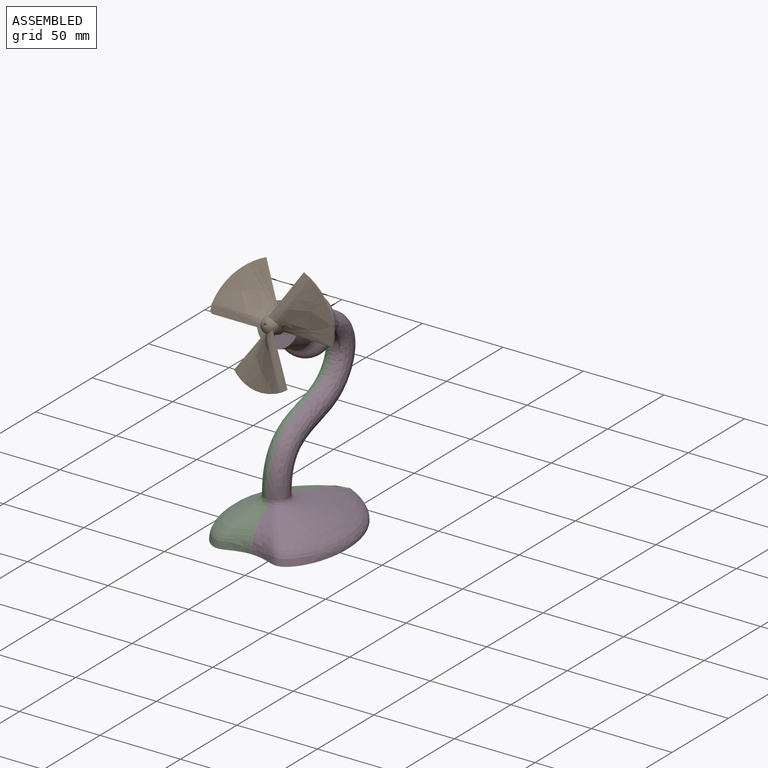
[diagram: assembled view]
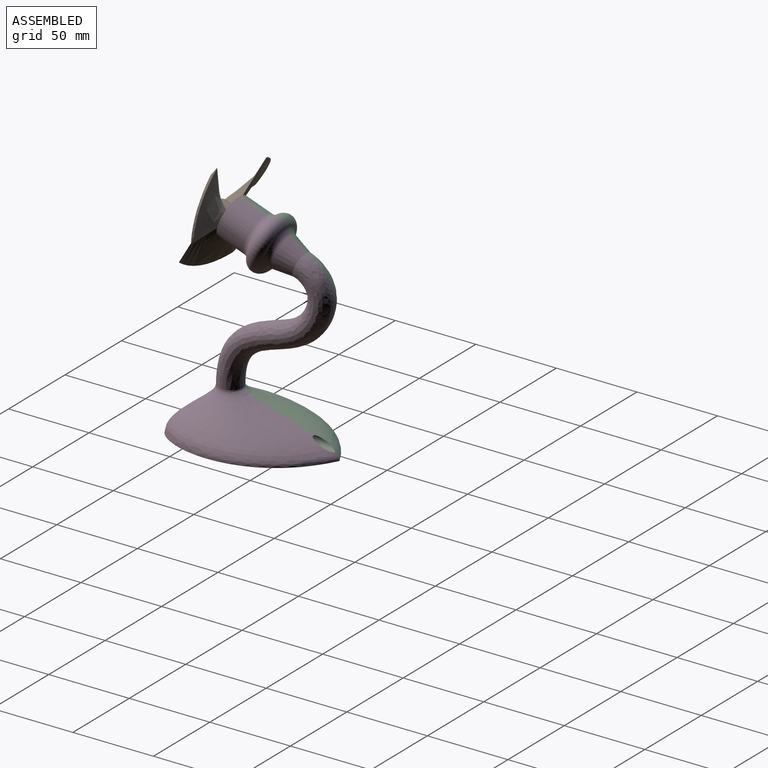
[diagram: assembled view, second angle]
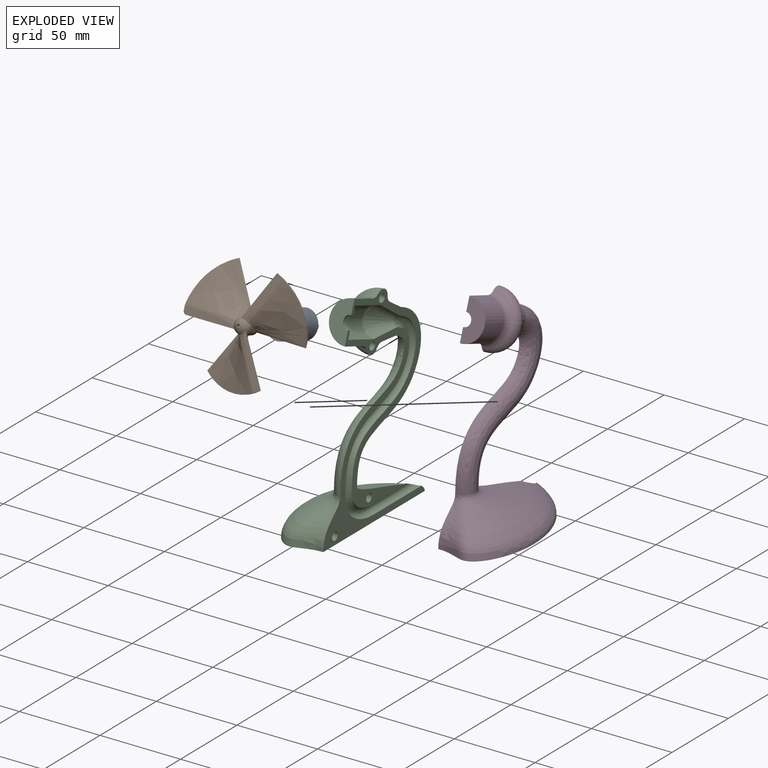
[diagram: exploded view]
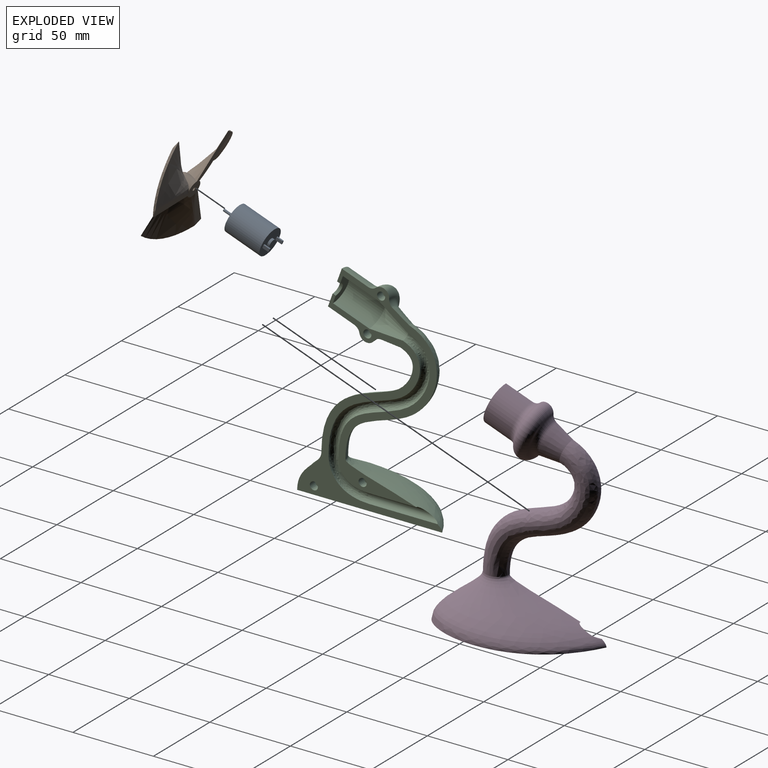
[diagram: exploded view, second angle]
ASSEMBLY  parts=4 mates=4
PART A: 19 faces, bbox 17.1x17.1x34.5 mm
  f0: plane 17.15x17.15mm, normal (0,0,-1), area 207.2mm2, adj f4,f5,f9,f10,f11,f12,f14,f15
  f1: cylinder r=3mm len=6mm, axis (0,0,-1), area 28.3mm2, adj f2,f6
  f2: plane 6x6mm, normal (0,0,1), area 26.5mm2, adj f1,f7
  f3: plane 5x5mm, normal (0,0,-1), area 19.6mm2, adj f4
  f4: cylinder r=2.5mm len=5mm, axis (0,0,-1), area 23.6mm2, adj f0,f3
  f5: cylinder r=8.57mm len=23mm, axis (0,0,-1), area 1238.8mm2, adj f0,f6
  f6: plane 17.15x17.15mm, normal (0,0,1), area 202.6mm2, adj f1,f5
  f7: cylinder r=0.75mm len=6mm, axis (0,0,-1), area 28.3mm2, adj f2,f8
  f8: plane 1.5x1.5mm, normal (0,0,1), area 1.8mm2, adj f7
  f9: plane 4x2mm, normal (1,0,0), area 8mm2, adj f0,f10,f12,f13
  f10: plane 4x1mm, normal (0,-1,0), area 4mm2, adj f0,f9,f11,f13
  f11: plane 4x2mm, normal (-1,0,0), area 8mm2, adj f0,f10,f12,f13
  f12: plane 4x1mm, normal (0,1,0), area 4mm2, adj f0,f9,f11,f13
  f13: plane 2x1mm, normal (0,0,-1), area 2mm2, adj f9,f10,f11,f12
  f14: plane 4x1mm, normal (0,-1,0), area 4mm2, adj f0,f15,f17,f18
  f15: plane 4x2mm, normal (-1,0,0), area 8mm2, adj f0,f14,f16,f18
  f16: plane 4x1mm, normal (0,1,0), area 4mm2, adj f0,f15,f17,f18
  f17: plane 4x2mm, normal (1,0,0), area 8mm2, adj f0,f14,f16,f18
  f18: plane 2x1mm, normal (0,0,-1), area 2mm2, adj f14,f15,f16,f17
PART B: 25 faces, bbox 82.8x72.9x14.5 mm
  f0: cylinder r=5mm len=9.37mm, axis (0,0,-1), area 41.2mm2, adj f5,f8,f10,f18,f23
  f1: cylinder r=5mm len=8.32mm, axis (0,0,-1), area 41.2mm2, adj f8,f9,f14,f16,f23
  f2: plane 27.73x19.71mm, normal (0,0,1), area 113.2mm2, adj f14,f15,f17,f23
  f3: plane 31.88x4.35mm, normal (0,0,1), area 112.4mm2, adj f5,f6,f11,f12,f23
  f4: plane 29.78x16.93mm, normal (0,0,1), area 113.2mm2, adj f19,f20,f22,f23
  f5: bspline ~36.07x32.64mm, area 686.2mm2, adj f0,f3,f6,f10,f12,f23
  f6: bspline ~37.18x30.22mm, area 50.1mm2, adj f3,f5,f8,f9,f10,f11,f12
  f7: cylinder r=5mm len=8.04mm, axis (0,0,-1), area 41.2mm2, adj f8,f13,f19,f21,f23
  f8: plane 62.77x55.31mm, normal (0,0,-1), area 407mm2, adj f0,f1,f6,f7,f9,f10,f13,f15
  f9: bspline ~36.54x32.18mm, area 685.8mm2, adj f1,f6,f8,f11,f23
  f10: bspline ~35.56x21.82mm, area 80.1mm2, adj f0,f5,f6,f8
  f11: bspline ~39.69x5.17mm, area 83.5mm2, adj f3,f6,f9,f23
  f12: cylinder r=2mm len=2mm, axis (0,0,1), area 0.7mm2, adj f3,f5,f6
  f13: bspline ~41.77x32.5mm, area 685.8mm2, adj f7,f8,f15,f17,f23
  f14: bspline ~39.49x36.69mm, area 688.2mm2, adj f1,f2,f15,f16,f23
  f15: bspline ~44.27x20.66mm, area 50.4mm2, adj f2,f8,f13,f14,f16,f17
  f16: bspline ~39.71x4.86mm, area 80.1mm2, adj f1,f8,f14,f15
  f17: bspline ~35.02x22.58mm, area 83.5mm2, adj f2,f13,f15,f23
  f18: bspline ~42.69x34.21mm, area 685.8mm2, adj f0,f8,f20,f22,f23
  f19: bspline ~43.62x34.59mm, area 688.2mm2, adj f4,f7,f20,f21,f23
  f20: bspline ~47.02x13.91mm, area 50.4mm2, adj f4,f8,f18,f19,f21,f22
  f21: bspline ~34.6x21.89mm, area 80.1mm2, adj f7,f8,f19,f20
  f22: bspline ~34.86x20.97mm, area 83.5mm2, adj f4,f18,f20,f23
  f23: sphere r=5mm, area 109.5mm2, adj f0,f1,f2,f3,f4,f5,f7,f9
  f24: cylinder r=1.05mm len=11.89mm, axis (0,0,-1), area 78.4mm2, adj f8,f23
PART C: 26 faces, bbox 40.1x107x144.4 mm
  f0: plane 118.87x104.87mm, normal (1,0,0), area 1381.4mm2, adj f1,f2,f3,f4,f5,f6,f7,f8
  f1: cylinder r=3mm len=41.85mm, axis (0,0.94,0.34), area 337.5mm2, adj f0,f2,f3,f17
  f2: bspline ~30.91x15.43mm, area 306.6mm2, adj f0,f1,f6,f17
  f3: bspline ~92.92x41.69mm, area 3497.4mm2, adj f0,f1,f4,f5,f17
  f4: plane 88.75x36.91mm, normal (0,0.34,-0.94), area 2647.8mm2, adj f0,f3
  f5: bspline ~99.42x51.15mm, area 2699.8mm2, adj f0,f3,f16,f17
  f6: bspline ~93.38x42.15mm, area 1079.9mm2, adj f0,f2,f7,f17
  f7: cone r=9mm half-angle=16.7deg, axis (0,-1,0), area 393.6mm2, adj f0,f6,f15,f17
  f8: torus R=17.5mm, axis (0,1,0), area 219.8mm2, adj f0,f10,f14,f17
  f9: torus R=15.25mm, axis (0,1,0), area 194.4mm2, adj f0,f10,f16,f17
  f10: torus R=12.5mm, axis (0,1,0), area 602.9mm2, adj f0,f8,f9,f17
  f11: plane 25x12.5mm, normal (0,-1,0), area 220.3mm2, adj f0,f12,f14,f17
  f12: cylinder r=4mm len=8mm, axis (0,1,0), area 25.1mm2, adj f0,f11,f13,f17
  f13: plane 18x9mm, normal (0,1,0), area 102.1mm2, adj f0,f12,f15,f17
  f14: cylinder r=12.5mm len=25mm, axis (0,-1,0), area 680.9mm2, adj f0,f8,f11,f17
  f15: cylinder r=9mm len=24mm, axis (0,-1,0), area 678.6mm2, adj f0,f7,f13,f17
  f16: cone r=7.5mm half-angle=14deg, axis (0,-1,0), area 336.1mm2, adj f0,f5,f9,f17
  f17: plane 118.74x88.57mm, normal (1,0,0), area 1045.9mm2, adj f1,f2,f3,f5,f6,f7,f8,f9
  f18: plane 5.35x5.35mm, normal (1,0,0), area 22.5mm2, adj f19
  f19: cone r=2.5mm half-angle=2deg, axis (-1,0,0), area 81.3mm2, adj f17,f18
  f20: plane 5.35x5.35mm, normal (1,0,0), area 22.5mm2, adj f21
  f21: cone r=2.5mm half-angle=2deg, axis (-1,0,0), area 81.3mm2, adj f17,f20
  f22: cone r=2.5mm half-angle=2deg, axis (-1,0,0), area 81.3mm2, adj f0,f23
  f23: plane 5.35x5.35mm, normal (1,0,0), area 22.5mm2, adj f22
  f24: plane 5.35x5.35mm, normal (1,0,0), area 22.5mm2, adj f25
  f25: cone r=2.5mm half-angle=2deg, axis (-1,0,0), area 81.3mm2, adj f0,f24
PART D: 26 faces, bbox 47.6x107x144.4 mm
  f0: plane 118.87x104.87mm, normal (-1,0,0), area 1381.4mm2, adj f1,f2,f3,f4,f5,f6,f7,f8
  f1: cone r=7.5mm half-angle=14deg, axis (0,-1,0), area 336.1mm2, adj f0,f9,f16,f17
  f2: cylinder r=9mm len=24mm, axis (0,-1,0), area 678.6mm2, adj f0,f4,f7,f17
  f3: cylinder r=12.5mm len=25mm, axis (0,-1,0), area 680.9mm2, adj f0,f6,f15,f17
  f4: plane 18x9mm, normal (0,1,0), area 102.1mm2, adj f0,f2,f5,f17
  f5: cylinder r=4mm len=8mm, axis (0,1,0), area 25.1mm2, adj f0,f4,f6,f17
  f6: plane 25x12.5mm, normal (0,-1,0), area 220.3mm2, adj f0,f3,f5,f17
  f7: cone r=9mm half-angle=16.7deg, axis (0,-1,0), area 393.6mm2, adj f0,f2,f8,f17
  f8: bspline ~97.4x48.67mm, area 1080mm2, adj f0,f7,f12,f17
  f9: bspline ~109.48x66.5mm, area 2699.7mm2, adj f0,f1,f11,f17
  f10: plane 88.75x36.91mm, normal (0,0.34,-0.94), area 2649.6mm2, adj f0,f11
  f11: bspline ~92.92x41.69mm, area 3497.4mm2, adj f0,f9,f10,f13,f17
  f12: bspline ~30.91x15.43mm, area 306.5mm2, adj f0,f8,f13,f17
  f13: cylinder r=3mm len=41.85mm, axis (0,0.94,0.34), area 337.5mm2, adj f0,f11,f12,f17
  f14: torus R=12.5mm, axis (0,1,0), area 602.9mm2, adj f0,f15,f16,f17
  f15: torus R=17.5mm, axis (0,1,0), area 219.8mm2, adj f0,f3,f14,f17
  f16: torus R=15.25mm, axis (0,1,0), area 194.4mm2, adj f0,f1,f14,f17
  f17: plane 118.74x88.57mm, normal (-1,0,0), area 1046.9mm2, adj f1,f2,f3,f4,f5,f6,f7,f8
  f18: plane 5.35x5.35mm, normal (-1,0,0), area 22.5mm2, adj f19
  f19: cone r=2.5mm half-angle=2deg, axis (1,0,0), area 81.3mm2, adj f0,f18
  f20: cone r=2.5mm half-angle=2deg, axis (1,0,0), area 81.3mm2, adj f0,f21
  f21: plane 5.35x5.35mm, normal (-1,0,0), area 22.5mm2, adj f20
  f22: cone r=2.5mm half-angle=2deg, axis (1,0,0), area 81.3mm2, adj f17,f23
  f23: plane 5.35x5.35mm, normal (-1,0,0), area 22.5mm2, adj f22
  f24: cone r=2.5mm half-angle=2deg, axis (1,0,0), area 81.3mm2, adj f17,f25
  f25: plane 5.35x5.35mm, normal (-1,0,0), area 22.5mm2, adj f24
PLACE A rot(axis=(0,0.57,-0.82),180deg) t=(15.83,8.44,111.21)mm
PLACE B rot(axis=(1,0,0),70deg) t=(15.83,-15.05,119.76)mm
PLACE C rot(axis=(-1,0,0),20deg) t=(15.83,-13.17,119.07)mm
PLACE D rot(axis=(-1,0,0),20deg) t=(15.83,-13.17,119.07)mm
MATE cylindrical B.f0 <-> C.f7  axis (0,0.94,-0.34) through (15.83,-15.05,119.76)mm
MATE planar C.f7 <-> A.f1  axis (0,0.94,-0.34) through (15.83,-13.17,119.07)mm
MATE planar D.f6 <-> B.f0  axis (0,-0.94,0.34) through (15.83,-17.88,112)mm
MATE cylindrical A.f1 <-> D.f1  axis (0,0.94,-0.34) through (15.83,-2.37,115.14)mm
